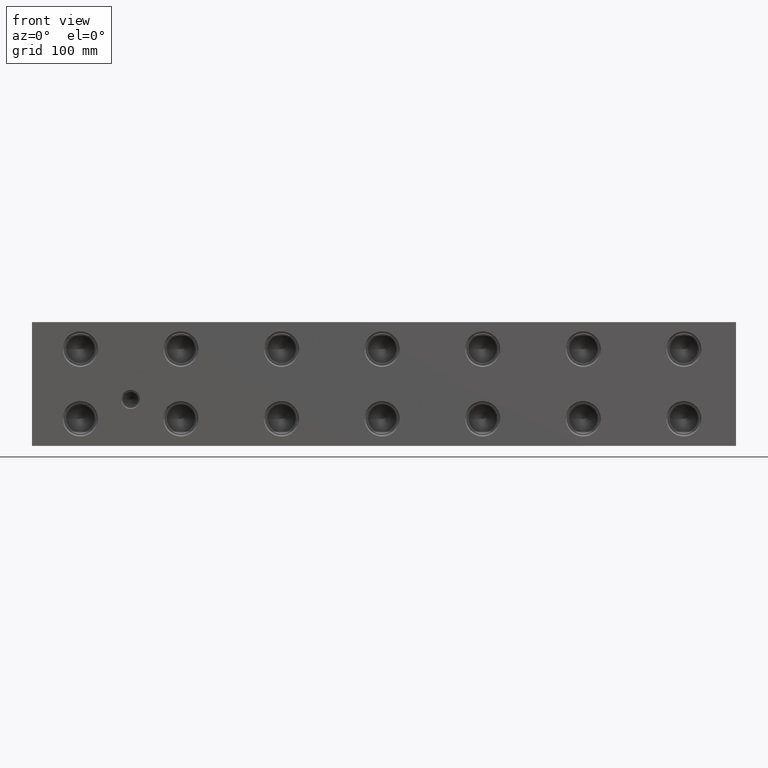
[diagram: clean part render]
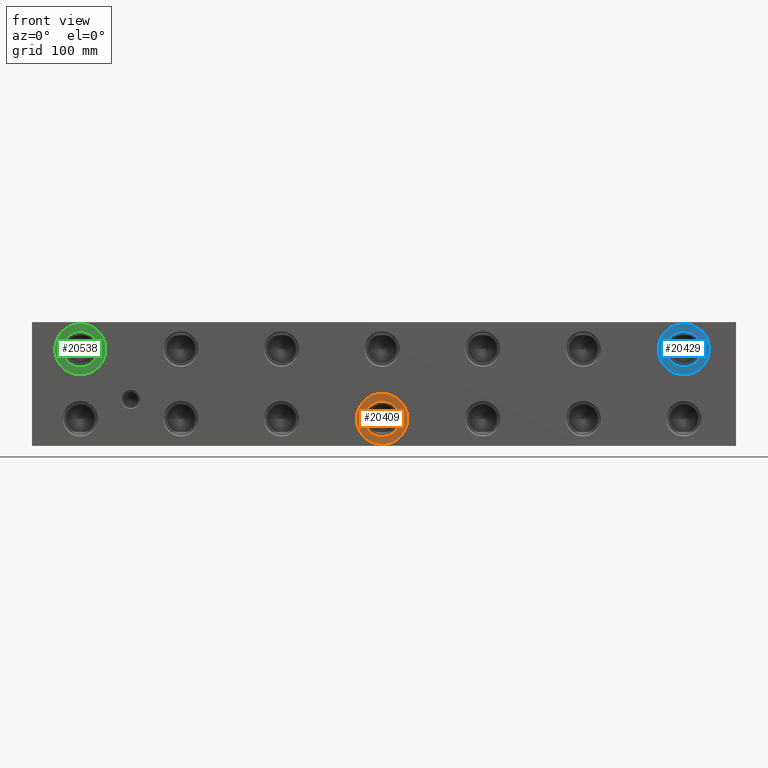
[diagram: same view with three faces highlighted in distinct colors, each labeled with its STEP entity id]
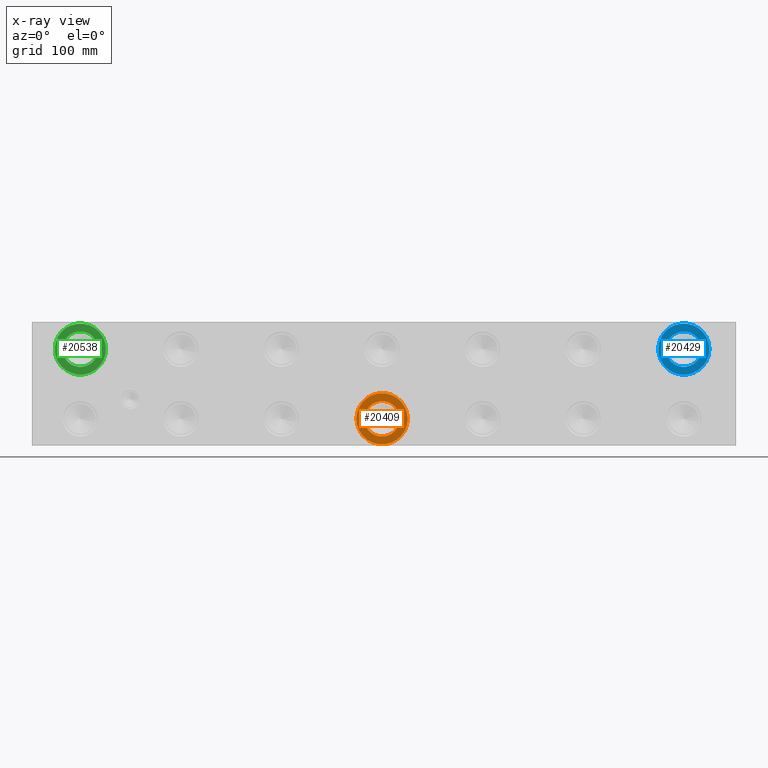
[diagram: x-ray of the same camera — body ghosted, the three highlighted faces saturated]
A machine part, front view with three faces highlighted in distinct colors.
The next image is the same camera in x-ray (body ghosted, the three faces saturated) — at least one of them is partly hidden behind the body in this view.
Their STEP definitions:

[orange] entity #20409 — the highlighted planar face has unit normal (0, 1, 0).
#739=CIRCLE('',#21460,21.0185);
#740=CIRCLE('',#21461,21.0185);
#741=CIRCLE('',#21463,14.5923);
#742=CIRCLE('',#21464,14.5923);
#1823=FACE_BOUND('',#3897,.T.);
#2701=FACE_OUTER_BOUND('',#3896,.T.);
#3896=EDGE_LOOP('',(#16830,#16831));
#3897=EDGE_LOOP('',(#16832,#16833));
#9207=VERTEX_POINT('',#34361);
#9208=VERTEX_POINT('',#34363);
#9209=VERTEX_POINT('',#34367);
#9210=VERTEX_POINT('',#34368);
#11900=EDGE_CURVE('',#9207,#9208,#739,.T.);
#11901=EDGE_CURVE('',#9208,#9207,#740,.T.);
#11902=EDGE_CURVE('',#9209,#9210,#741,.T.);
#11903=EDGE_CURVE('',#9210,#9209,#742,.T.);
#16830=ORIENTED_EDGE('',*,*,#11901,.F.);
#16831=ORIENTED_EDGE('',*,*,#11900,.F.);
#16832=ORIENTED_EDGE('',*,*,#11902,.T.);
#16833=ORIENTED_EDGE('',*,*,#11903,.T.);
#18927=PLANE('',#21462);
#20409=ADVANCED_FACE('',(#2701,#1823),#18927,.F.);
#21460=AXIS2_PLACEMENT_3D('',#34364,#25217,#25218);
#21461=AXIS2_PLACEMENT_3D('',#34365,#25219,#25220);
#21462=AXIS2_PLACEMENT_3D('',#34366,#25221,#25222);
#21463=AXIS2_PLACEMENT_3D('',#34369,#25223,#25224);
#21464=AXIS2_PLACEMENT_3D('',#34370,#25225,#25226);
#25217=DIRECTION('center_axis',(0.,1.,0.));
#25218=DIRECTION('ref_axis',(1.,0.,0.));
#25219=DIRECTION('center_axis',(0.,1.,0.));
#25220=DIRECTION('ref_axis',(1.,0.,0.));
#25221=DIRECTION('center_axis',(0.,1.,0.));
#25222=DIRECTION('ref_axis',(0.,0.,1.));
#25223=DIRECTION('center_axis',(0.,1.,0.));
#25224=DIRECTION('ref_axis',(1.,0.,0.));
#25225=DIRECTION('center_axis',(0.,1.,0.));
#25226=DIRECTION('ref_axis',(1.,0.,0.));
#34361=CARTESIAN_POINT('',(266.3063,0.7874,22.225));
#34363=CARTESIAN_POINT('',(308.3433,0.7874,22.225));
#34364=CARTESIAN_POINT('Origin',(287.3248,0.7874,22.225));
#34365=CARTESIAN_POINT('Origin',(287.3248,0.7874,22.225));
#34366=CARTESIAN_POINT('Origin',(301.9171,0.7874,22.225));
#34367=CARTESIAN_POINT('',(301.9171,0.7874,22.225));
#34368=CARTESIAN_POINT('',(272.7325,0.787399999999995,22.225));
#34369=CARTESIAN_POINT('Origin',(287.3248,0.7874,22.225));
#34370=CARTESIAN_POINT('Origin',(287.3248,0.7874,22.225));

[blue] entity #20429 — the highlighted planar face has unit normal (0, 1, 0).
#775=CIRCLE('',#21516,21.0185);
#776=CIRCLE('',#21517,21.0185);
#777=CIRCLE('',#21519,14.5923);
#778=CIRCLE('',#21520,14.5923);
#1827=FACE_BOUND('',#3921,.T.);
#2721=FACE_OUTER_BOUND('',#3920,.T.);
#3920=EDGE_LOOP('',(#16938,#16939));
#3921=EDGE_LOOP('',(#16940,#16941));
#9243=VERTEX_POINT('',#34469);
#9244=VERTEX_POINT('',#34471);
#9245=VERTEX_POINT('',#34475);
#9246=VERTEX_POINT('',#34476);
#11952=EDGE_CURVE('',#9243,#9244,#775,.T.);
#11953=EDGE_CURVE('',#9244,#9243,#776,.T.);
#11954=EDGE_CURVE('',#9245,#9246,#777,.T.);
#11955=EDGE_CURVE('',#9246,#9245,#778,.T.);
#16938=ORIENTED_EDGE('',*,*,#11953,.F.);
#16939=ORIENTED_EDGE('',*,*,#11952,.F.);
#16940=ORIENTED_EDGE('',*,*,#11954,.T.);
#16941=ORIENTED_EDGE('',*,*,#11955,.T.);
#18931=PLANE('',#21518);
#20429=ADVANCED_FACE('',(#2721,#1827),#18931,.F.);
#21516=AXIS2_PLACEMENT_3D('',#34472,#25345,#25346);
#21517=AXIS2_PLACEMENT_3D('',#34473,#25347,#25348);
#21518=AXIS2_PLACEMENT_3D('',#34474,#25349,#25350);
#21519=AXIS2_PLACEMENT_3D('',#34477,#25351,#25352);
#21520=AXIS2_PLACEMENT_3D('',#34478,#25353,#25354);
#25345=DIRECTION('center_axis',(0.,1.,0.));
#25346=DIRECTION('ref_axis',(1.,0.,0.));
#25347=DIRECTION('center_axis',(0.,1.,0.));
#25348=DIRECTION('ref_axis',(1.,0.,0.));
#25349=DIRECTION('center_axis',(0.,1.,0.));
#25350=DIRECTION('ref_axis',(0.,0.,1.));
#25351=DIRECTION('center_axis',(0.,1.,0.));
#25352=DIRECTION('ref_axis',(1.,0.,0.));
#25353=DIRECTION('center_axis',(0.,1.,0.));
#25354=DIRECTION('ref_axis',(1.,0.,0.));
#34469=CARTESIAN_POINT('',(513.9563,0.7874,79.375));
#34471=CARTESIAN_POINT('',(555.9933,0.7874,79.375));
#34472=CARTESIAN_POINT('Origin',(534.9748,0.7874,79.375));
#34473=CARTESIAN_POINT('Origin',(534.9748,0.7874,79.375));
#34474=CARTESIAN_POINT('Origin',(549.5671,0.7874,79.375));
#34475=CARTESIAN_POINT('',(549.5671,0.7874,79.375));
#34476=CARTESIAN_POINT('',(520.3825,0.787399999999991,79.375));
#34477=CARTESIAN_POINT('Origin',(534.9748,0.7874,79.375));
#34478=CARTESIAN_POINT('Origin',(534.9748,0.7874,79.375));

[green] entity #20538 — the highlighted planar face has unit normal (0, 1, 0).
#933=CIRCLE('',#21783,21.0185);
#934=CIRCLE('',#21784,21.0185);
#935=CIRCLE('',#21786,14.5923);
#936=CIRCLE('',#21787,14.5923);
#1846=FACE_BOUND('',#4049,.T.);
#2830=FACE_OUTER_BOUND('',#4048,.T.);
#4048=EDGE_LOOP('',(#17451,#17452));
#4049=EDGE_LOOP('',(#17453,#17454));
#9415=VERTEX_POINT('',#34998);
#9416=VERTEX_POINT('',#35000);
#9417=VERTEX_POINT('',#35004);
#9418=VERTEX_POINT('',#35005);
#12200=EDGE_CURVE('',#9415,#9416,#933,.T.);
#12201=EDGE_CURVE('',#9416,#9415,#934,.T.);
#12202=EDGE_CURVE('',#9417,#9418,#935,.T.);
#12203=EDGE_CURVE('',#9418,#9417,#936,.T.);
#17451=ORIENTED_EDGE('',*,*,#12201,.F.);
#17452=ORIENTED_EDGE('',*,*,#12200,.F.);
#17453=ORIENTED_EDGE('',*,*,#12202,.T.);
#17454=ORIENTED_EDGE('',*,*,#12203,.T.);
#18950=PLANE('',#21785);
#20538=ADVANCED_FACE('',(#2830,#1846),#18950,.F.);
#21783=AXIS2_PLACEMENT_3D('',#35001,#25969,#25970);
#21784=AXIS2_PLACEMENT_3D('',#35002,#25971,#25972);
#21785=AXIS2_PLACEMENT_3D('',#35003,#25973,#25974);
#21786=AXIS2_PLACEMENT_3D('',#35006,#25975,#25976);
#21787=AXIS2_PLACEMENT_3D('',#35007,#25977,#25978);
#25969=DIRECTION('center_axis',(0.,1.,0.));
#25970=DIRECTION('ref_axis',(1.,0.,0.));
#25971=DIRECTION('center_axis',(0.,1.,0.));
#25972=DIRECTION('ref_axis',(1.,0.,0.));
#25973=DIRECTION('center_axis',(0.,1.,0.));
#25974=DIRECTION('ref_axis',(0.,0.,1.));
#25975=DIRECTION('center_axis',(0.,1.,0.));
#25976=DIRECTION('ref_axis',(1.,0.,0.));
#25977=DIRECTION('center_axis',(0.,1.,0.));
#25978=DIRECTION('ref_axis',(1.,0.,0.));
#34998=CARTESIAN_POINT('',(18.6563,0.7874,79.375));
#35000=CARTESIAN_POINT('',(60.6933,0.7874,79.375));
#35001=CARTESIAN_POINT('Origin',(39.6748,0.7874,79.375));
#35002=CARTESIAN_POINT('Origin',(39.6748,0.7874,79.375));
#35003=CARTESIAN_POINT('Origin',(54.2671,0.7874,79.375));
#35004=CARTESIAN_POINT('',(54.2671,0.7874,79.375));
#35005=CARTESIAN_POINT('',(25.0825,0.787399999999999,79.375));
#35006=CARTESIAN_POINT('Origin',(39.6748,0.7874,79.375));
#35007=CARTESIAN_POINT('Origin',(39.6748,0.7874,79.375));